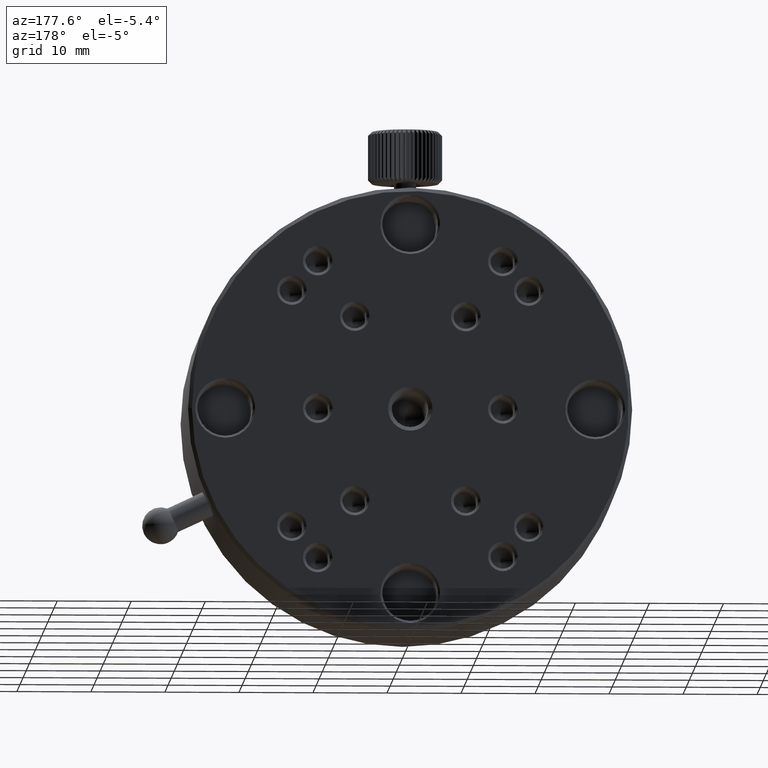
[diagram: clean part render]
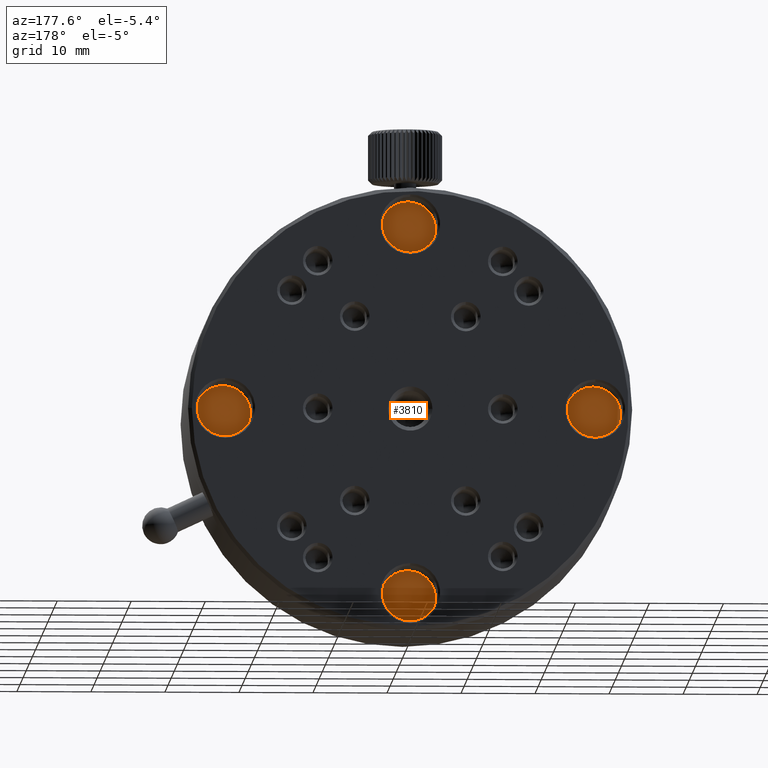
[diagram: same view with one face highlighted and labeled with its STEP entity id]
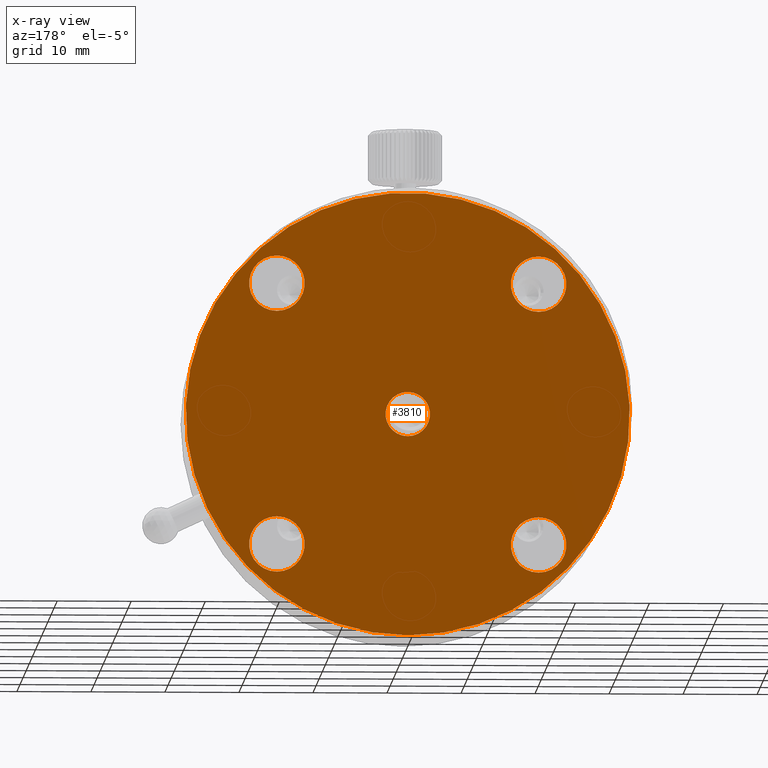
[diagram: x-ray of the same camera — body ghosted, the highlighted face saturated]
A machine part, auxiliary view. The second image highlights one B-rep face of the part: STEP entity #3810.
The next image is the same camera in x-ray: the body ghosted, the highlighted face saturated — about 0% of this face is hidden behind the body in this view.
In plain terms, the highlighted planar face has unit normal (-0, 1, 0).
Its self-contained STEP definition (entity closure, byte-faithful):
#72 = DIRECTION ( 'NONE',  ( 0.000000000000000000, -1.000000000000000000, 0.000000000000000000 ) ) ;
#143 = EDGE_LOOP ( 'NONE', ( #7657 ) ) ;
#211 = AXIS2_PLACEMENT_3D ( 'NONE', #8130, #72, #7426 ) ;
#383 = EDGE_LOOP ( 'NONE', ( #8009 ) ) ;
#457 = FACE_OUTER_BOUND ( 'NONE', #383, .T. ) ;
#512 = DIRECTION ( 'NONE',  ( 0.000000000000000000, 0.000000000000000000, -1.000000000000000000 ) ) ;
#598 = ORIENTED_EDGE ( 'NONE', *, *, #6460, .T. ) ;
#646 = DIRECTION ( 'NONE',  ( -0.000000000000000000, 1.000000000000000000, -0.000000000000000000 ) ) ;
#1135 = DIRECTION ( 'NONE',  ( 0.000000000000000000, -1.000000000000000000, 0.000000000000000000 ) ) ;
#1238 = DIRECTION ( 'NONE',  ( 0.000000000000000000, -1.000000000000000000, 0.000000000000000000 ) ) ;
#1240 = DIRECTION ( 'NONE',  ( -0.000000000000000000, -1.000000000000000000, -0.000000000000000000 ) ) ;
#1390 = AXIS2_PLACEMENT_3D ( 'NONE', #4070, #7004, #512 ) ;
#1506 = VERTEX_POINT ( 'NONE', #4540 ) ;
#1530 = EDGE_LOOP ( 'NONE', ( #4081 ) ) ;
#1886 = CARTESIAN_POINT ( 'NONE',  ( 17.67766952966367811, 17.00000000000000000, -21.42766952966370297 ) ) ;
#1975 = CIRCLE ( 'NONE', #5671, 30.00000000000000000 ) ;
#2125 = FACE_BOUND ( 'NONE', #4238, .T. ) ;
#2495 = EDGE_CURVE ( 'NONE', #7036, #7036, #9242, .T. ) ;
#2700 = CARTESIAN_POINT ( 'NONE',  ( 17.67766952966370297, 17.00000000000000000, 13.92766952966367811 ) ) ;
#2742 = CARTESIAN_POINT ( 'NONE',  ( 0.000000000000000000, 17.00000000000000000, -30.00000000000000000 ) ) ;
#3026 = DIRECTION ( 'NONE',  ( 0.000000000000000000, 0.000000000000000000, -1.000000000000000000 ) ) ;
#3306 = DIRECTION ( 'NONE',  ( 0.000000000000000000, 0.000000000000000000, 1.000000000000000000 ) ) ;
#3523 = FACE_BOUND ( 'NONE', #143, .T. ) ;
#3810 = ADVANCED_FACE ( 'NONE', ( #8624, #3523, #2125, #4148, #8574, #457 ), #6368, .T. ) ;
#3936 = EDGE_CURVE ( 'NONE', #6179, #6179, #5104, .T. ) ;
#4063 = CARTESIAN_POINT ( 'NONE',  ( -17.67766952966370297, 17.00000000000000000, -21.42766952966367811 ) ) ;
#4070 = CARTESIAN_POINT ( 'NONE',  ( 17.67766952966370297, 17.00000000000000000, 17.67766952966367811 ) ) ;
#4081 = ORIENTED_EDGE ( 'NONE', *, *, #8863, .T. ) ;
#4143 = CARTESIAN_POINT ( 'NONE',  ( 0.000000000000000000, 17.00000000000000000, 0.000000000000000000 ) ) ;
#4148 = FACE_BOUND ( 'NONE', #5912, .T. ) ;
#4162 = DIRECTION ( 'NONE',  ( 0.000000000000000000, 0.000000000000000000, -1.000000000000000000 ) ) ;
#4238 = EDGE_LOOP ( 'NONE', ( #8828 ) ) ;
#4475 = AXIS2_PLACEMENT_3D ( 'NONE', #7807, #1238, #4162 ) ;
#4540 = CARTESIAN_POINT ( 'NONE',  ( 0.000000000000000000, 17.00000000005275069, 3.000000000056746607 ) ) ;
#4804 = CARTESIAN_POINT ( 'NONE',  ( 0.000000000000000000, 17.00000000005275069, 0.000000000000000000 ) ) ;
#4829 = EDGE_CURVE ( 'NONE', #9399, #9399, #1975, .T. ) ;
#4833 = AXIS2_PLACEMENT_3D ( 'NONE', #4804, #1240, #3306 ) ;
#5099 = AXIS2_PLACEMENT_3D ( 'NONE', #6230, #1135, #6999 ) ;
#5104 = CIRCLE ( 'NONE', #211, 3.750000000000000000 ) ;
#5440 = EDGE_CURVE ( 'NONE', #9344, #9344, #7369, .T. ) ;
#5643 = DIRECTION ( 'NONE',  ( 0.000000000000000000, -0.000000000000000000, 1.000000000000000000 ) ) ;
#5671 = AXIS2_PLACEMENT_3D ( 'NONE', #4143, #646, #3026 ) ;
#5867 = CIRCLE ( 'NONE', #4475, 3.750000000000000000 ) ;
#5912 = EDGE_LOOP ( 'NONE', ( #598 ) ) ;
#6179 = VERTEX_POINT ( 'NONE', #1886 ) ;
#6230 = CARTESIAN_POINT ( 'NONE',  ( -17.67766952966370297, 17.00000000000000000, -17.67766952966367811 ) ) ;
#6368 = PLANE ( 'NONE',  #7724 ) ;
#6460 = EDGE_CURVE ( 'NONE', #7135, #7135, #5867, .T. ) ;
#6521 = CIRCLE ( 'NONE', #4833, 3.000000000056746607 ) ;
#6999 = DIRECTION ( 'NONE',  ( 0.000000000000000000, 0.000000000000000000, -1.000000000000000000 ) ) ;
#7004 = DIRECTION ( 'NONE',  ( 0.000000000000000000, -1.000000000000000000, 0.000000000000000000 ) ) ;
#7036 = VERTEX_POINT ( 'NONE', #4063 ) ;
#7055 = ORIENTED_EDGE ( 'NONE', *, *, #5440, .T. ) ;
#7135 = VERTEX_POINT ( 'NONE', #8570 ) ;
#7369 = CIRCLE ( 'NONE', #1390, 3.750000000000000000 ) ;
#7426 = DIRECTION ( 'NONE',  ( 0.000000000000000000, 0.000000000000000000, -1.000000000000000000 ) ) ;
#7657 = ORIENTED_EDGE ( 'NONE', *, *, #3936, .T. ) ;
#7724 = AXIS2_PLACEMENT_3D ( 'NONE', #9258, #7900, #5643 ) ;
#7778 = EDGE_LOOP ( 'NONE', ( #7055 ) ) ;
#7807 = CARTESIAN_POINT ( 'NONE',  ( -17.67766952966367811, 17.00000000000000000, 17.67766952966370297 ) ) ;
#7900 = DIRECTION ( 'NONE',  ( -0.000000000000000000, 1.000000000000000000, 0.000000000000000000 ) ) ;
#8009 = ORIENTED_EDGE ( 'NONE', *, *, #4829, .T. ) ;
#8130 = CARTESIAN_POINT ( 'NONE',  ( 17.67766952966367811, 17.00000000000000000, -17.67766952966370297 ) ) ;
#8570 = CARTESIAN_POINT ( 'NONE',  ( -17.67766952966367811, 17.00000000000000000, 13.92766952966370120 ) ) ;
#8574 = FACE_BOUND ( 'NONE', #7778, .T. ) ;
#8624 = FACE_BOUND ( 'NONE', #1530, .T. ) ;
#8828 = ORIENTED_EDGE ( 'NONE', *, *, #2495, .T. ) ;
#8863 = EDGE_CURVE ( 'NONE', #1506, #1506, #6521, .T. ) ;
#9242 = CIRCLE ( 'NONE', #5099, 3.750000000000000000 ) ;
#9258 = CARTESIAN_POINT ( 'NONE',  ( 21.21320343559640875, 17.00000000000000000, -21.21320343559644073 ) ) ;
#9344 = VERTEX_POINT ( 'NONE', #2700 ) ;
#9399 = VERTEX_POINT ( 'NONE', #2742 ) ;